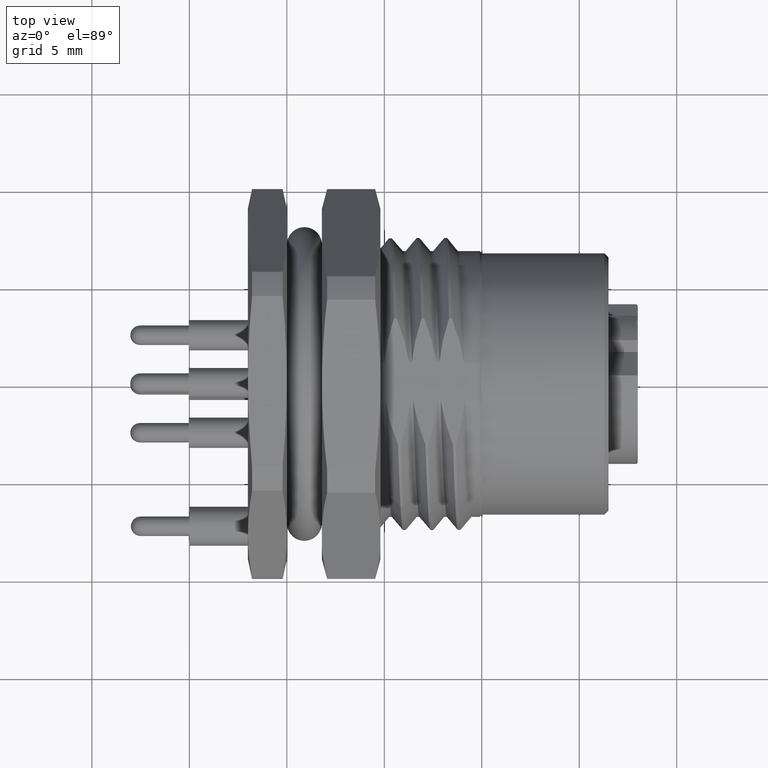
[diagram: clean part render]
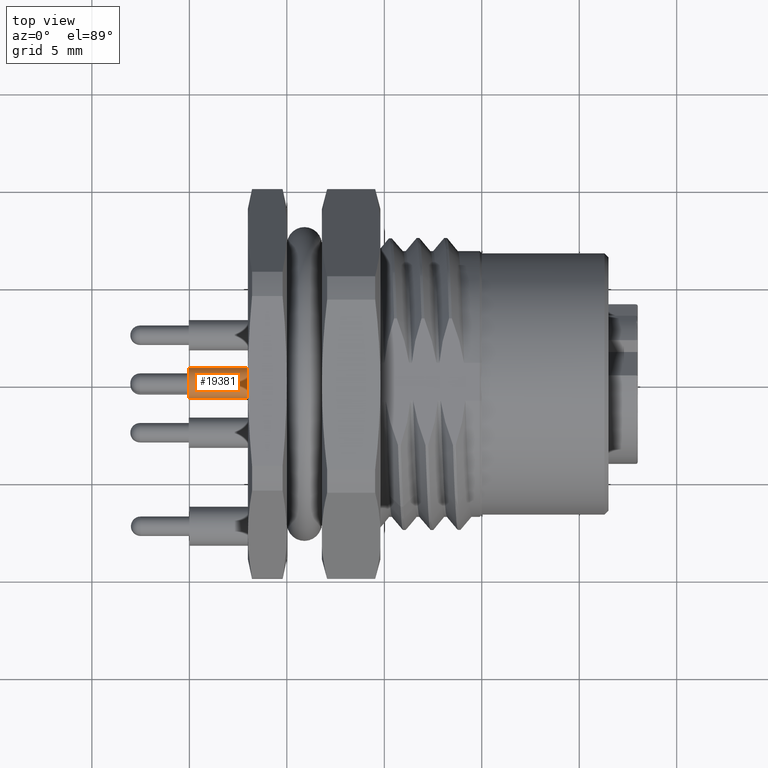
[diagram: same view with one face highlighted and labeled with its STEP entity id]
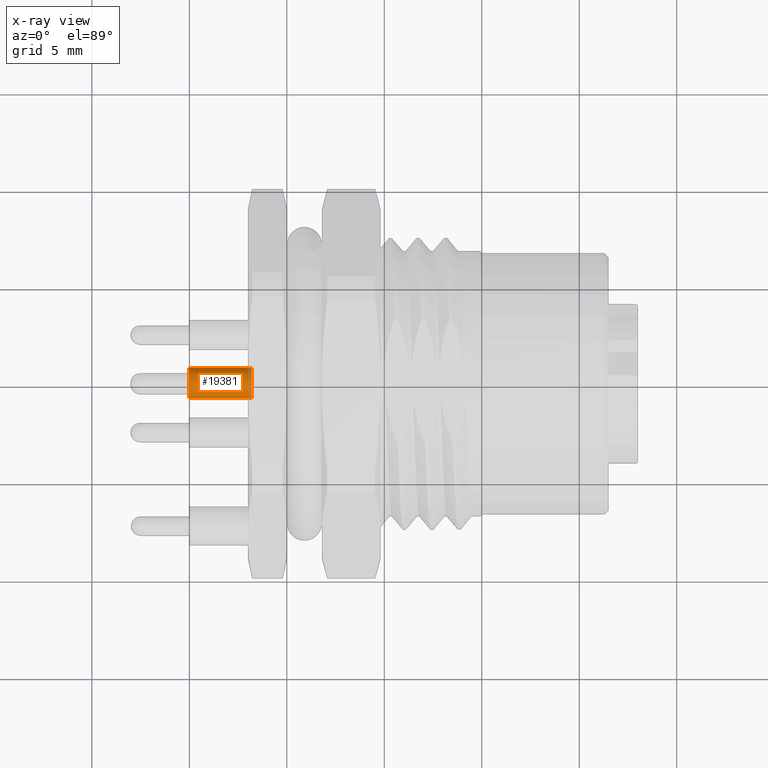
[diagram: x-ray of the same camera — body ghosted, the highlighted face saturated]
A machine part, top view. The second image highlights one B-rep face of the part: STEP entity #19381.
The next image is the same camera in x-ray: the body ghosted, the highlighted face saturated — about 6% of this face is hidden behind the body in this view.
In plain terms, the highlighted cylindrical surface (edge-blend (fillet) strip) has radius 0.775 mm, axis along (-1, 0, 0).
Its self-contained STEP definition (entity closure, byte-faithful):
#7200=CARTESIAN_POINT('',(-7.086614173223E-2,0.E0,9.842519685039E-2));
#7201=DIRECTION('',(-1.E0,0.E0,0.E0));
#7202=DIRECTION('',(0.E0,-1.E0,0.E0));
#7203=AXIS2_PLACEMENT_3D('',#7200,#7201,#7202);
#7210=DIRECTION('',(-1.E0,0.E0,0.E0));
#7211=VECTOR('',#7210,1.271653543308E-1);
#7212=CARTESIAN_POINT('',(-7.086614173223E-2,3.051181102362E-2,
9.842519685039E-2));
#7213=LINE('',#7212,#7211);
#7214=DIRECTION('',(1.E0,0.E0,0.E0));
#7215=VECTOR('',#7214,1.271653543308E-1);
#7216=CARTESIAN_POINT('',(-1.980314960630E-1,-3.051181102362E-2,
9.842519685039E-2));
#7217=LINE('',#7216,#7215);
#7223=CARTESIAN_POINT('',(-1.980314960630E-1,0.E0,9.842519685039E-2));
#7224=DIRECTION('',(1.E0,0.E0,0.E0));
#7225=DIRECTION('',(0.E0,1.E0,0.E0));
#7226=AXIS2_PLACEMENT_3D('',#7223,#7224,#7225);
#9853=CARTESIAN_POINT('',(-1.980314960630E-1,-3.051181102362E-2,
9.842519685039E-2));
#9854=CARTESIAN_POINT('',(-1.980314960630E-1,3.051181102362E-2,
9.842519685039E-2));
#9855=VERTEX_POINT('',#9853);
#9856=VERTEX_POINT('',#9854);
#11085=CARTESIAN_POINT('',(-7.086614173223E-2,-3.051181102362E-2,
9.842519685039E-2));
#11086=CARTESIAN_POINT('',(-7.086614173223E-2,3.051181102362E-2,
9.842519685039E-2));
#11087=VERTEX_POINT('',#11085);
#11088=VERTEX_POINT('',#11086);
#19367=CARTESIAN_POINT('',(1.686062992126E-1,0.E0,9.842519685039E-2));
#19368=DIRECTION('',(-1.E0,0.E0,0.E0));
#19369=DIRECTION('',(0.E0,1.E0,0.E0));
#19370=AXIS2_PLACEMENT_3D('',#19367,#19368,#19369);
#19371=CYLINDRICAL_SURFACE('',#19370,3.051181102362E-2);
#19372=ORIENTED_EDGE('',*,*,#18340,.F.);
#19374=ORIENTED_EDGE('',*,*,#19373,.F.);
#19376=ORIENTED_EDGE('',*,*,#19375,.F.);
#19378=ORIENTED_EDGE('',*,*,#19377,.F.);
#19379=EDGE_LOOP('',(#19372,#19374,#19376,#19378));
#19380=FACE_OUTER_BOUND('',#19379,.F.);
#19381=ADVANCED_FACE('',(#19380),#19371,.T.);
#7204=CIRCLE('',#7203,3.051181102362E-2);
#7227=CIRCLE('',#7226,3.051181102362E-2);
#18340=EDGE_CURVE('',#11087,#11088,#7204,.T.);
#19373=EDGE_CURVE('',#9855,#11087,#7217,.T.);
#19375=EDGE_CURVE('',#9856,#9855,#7227,.T.);
#19377=EDGE_CURVE('',#11088,#9856,#7213,.T.);